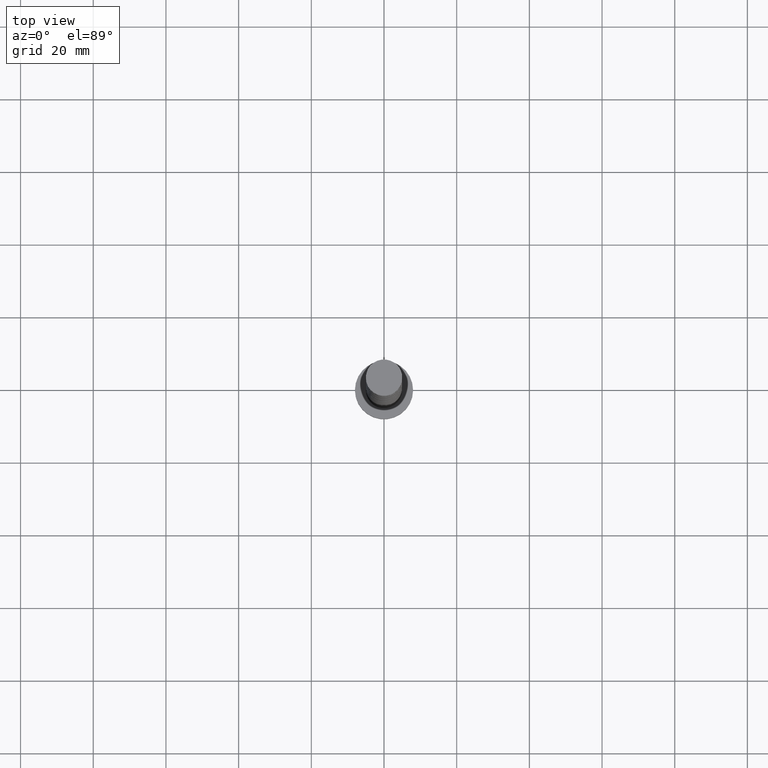
[diagram: clean part render]
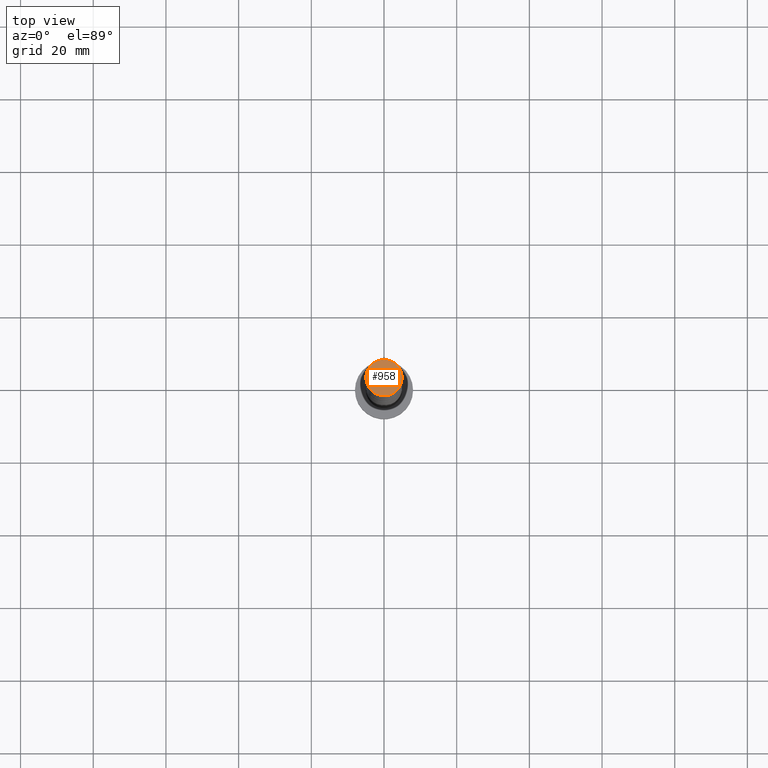
[diagram: same view with one face highlighted and labeled with its STEP entity id]
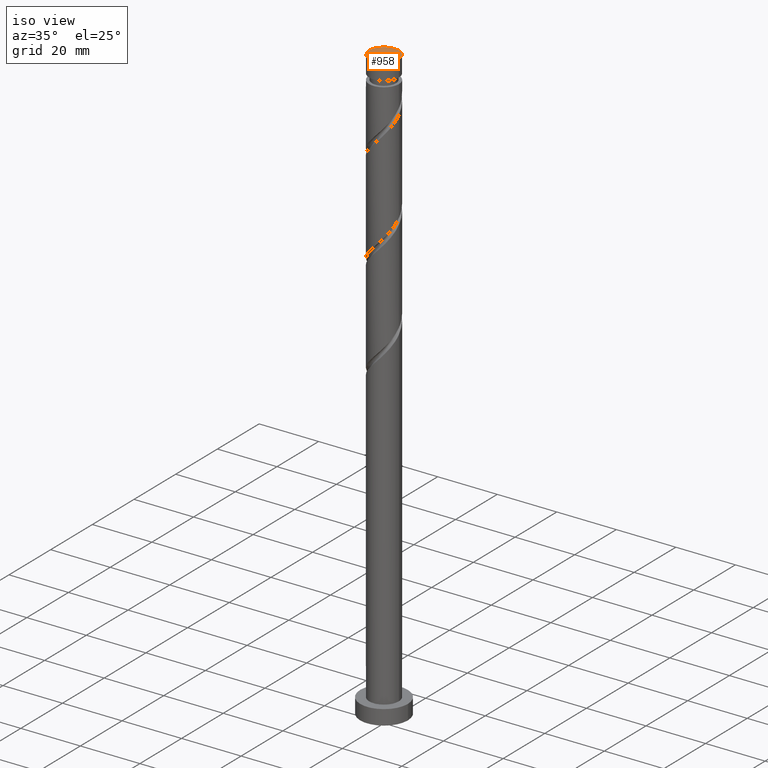
[diagram: same view with one face highlighted and labeled with its STEP entity id]
A machine part, top view. The second image highlights one B-rep face of the part: STEP entity #958.
A second angle (iso view) of the same face is appended — the face is thin or edge-on in the first view.
In plain terms, the highlighted planar face has unit normal (0, 0, 1).
Its self-contained STEP definition (entity closure, byte-faithful):
#85 = CARTESIAN_POINT ( 'NONE',  ( 0.000000000000000000, 0.000000000000000000, 200.0000000000000000 ) ) ;
#102 = DIRECTION ( 'NONE',  ( 0.000000000000000000, 0.000000000000000000, 1.000000000000000000 ) ) ;
#129 = DIRECTION ( 'NONE',  ( 0.000000000000000000, 0.000000000000000000, 1.000000000000000000 ) ) ;
#132 = ORIENTED_EDGE ( 'NONE', *, *, #453, .T. ) ;
#215 = CIRCLE ( 'NONE', #714, 5.000000000000000888 ) ;
#453 = EDGE_CURVE ( 'NONE', #595, #1342, #1249, .T. ) ;
#595 = VERTEX_POINT ( 'NONE', #1397 ) ;
#628 = AXIS2_PLACEMENT_3D ( 'NONE', #85, #1169, #1729 ) ;
#714 = AXIS2_PLACEMENT_3D ( 'NONE', #892, #102, #1429 ) ;
#750 = FACE_OUTER_BOUND ( 'NONE', #1472, .T. ) ;
#877 = DIRECTION ( 'NONE',  ( 1.000000000000000000, 0.000000000000000000, 0.000000000000000000 ) ) ;
#892 = CARTESIAN_POINT ( 'NONE',  ( 0.000000000000000000, 0.000000000000000000, 200.0000000000000000 ) ) ;
#948 = AXIS2_PLACEMENT_3D ( 'NONE', #1348, #129, #877 ) ;
#958 = ADVANCED_FACE ( 'NONE', ( #750 ), #1308, .T. ) ;
#1169 = DIRECTION ( 'NONE',  ( 0.000000000000000000, 0.000000000000000000, 1.000000000000000000 ) ) ;
#1174 = CARTESIAN_POINT ( 'NONE',  ( 5.000000000000000888, 6.123233995736767268E-16, 200.0000000000000000 ) ) ;
#1249 = CIRCLE ( 'NONE', #948, 5.000000000000000888 ) ;
#1308 = PLANE ( 'NONE',  #628 ) ;
#1342 = VERTEX_POINT ( 'NONE', #1174 ) ;
#1348 = CARTESIAN_POINT ( 'NONE',  ( 0.000000000000000000, 0.000000000000000000, 200.0000000000000000 ) ) ;
#1363 = EDGE_CURVE ( 'NONE', #1342, #595, #215, .T. ) ;
#1397 = CARTESIAN_POINT ( 'NONE',  ( -5.000000000000000888, 0.000000000000000000, 200.0000000000000000 ) ) ;
#1429 = DIRECTION ( 'NONE',  ( 1.000000000000000000, 0.000000000000000000, 0.000000000000000000 ) ) ;
#1456 = ORIENTED_EDGE ( 'NONE', *, *, #1363, .T. ) ;
#1472 = EDGE_LOOP ( 'NONE', ( #132, #1456 ) ) ;
#1729 = DIRECTION ( 'NONE',  ( 1.000000000000000000, 0.000000000000000000, -0.000000000000000000 ) ) ;